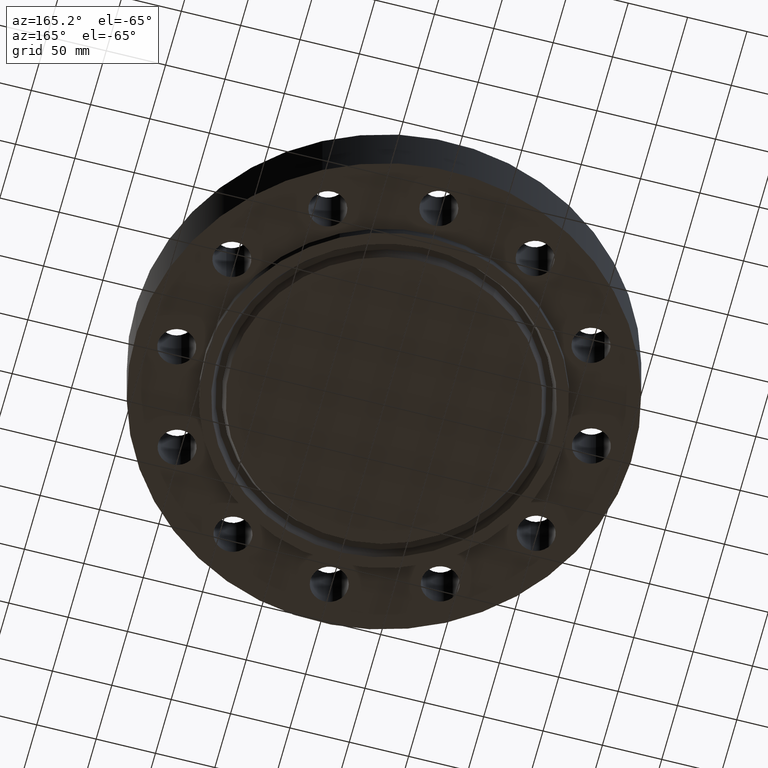
[diagram: clean part render]
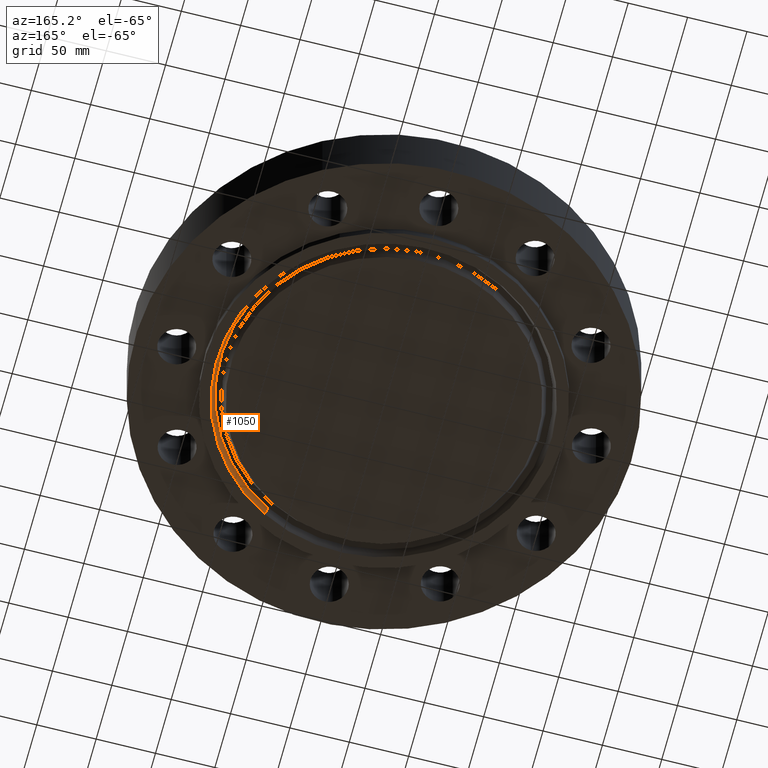
[diagram: same view with one face highlighted and labeled with its STEP entity id]
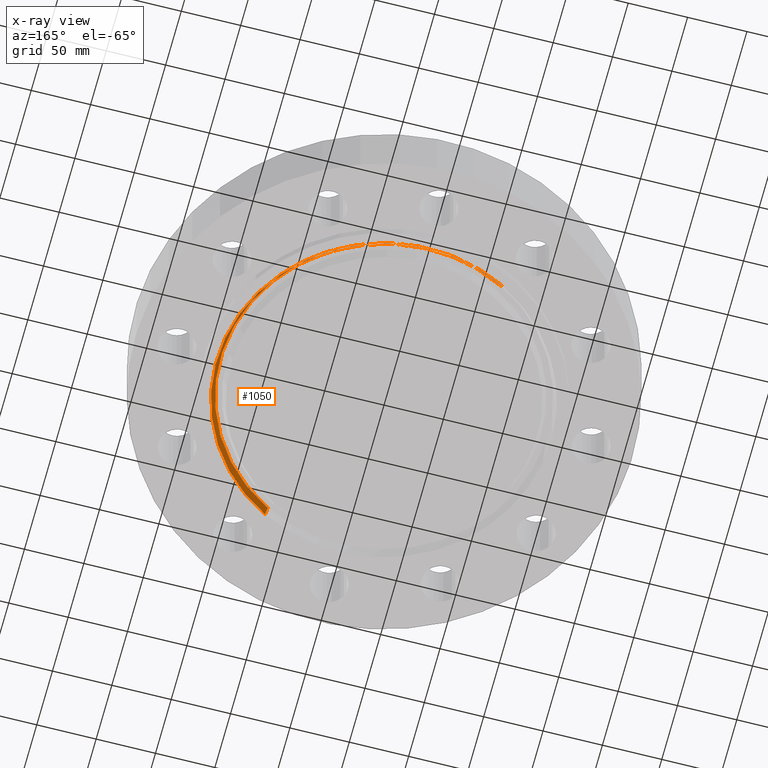
[diagram: x-ray of the same camera — body ghosted, the highlighted face saturated]
A machine part, auxiliary view. The second image highlights one B-rep face of the part: STEP entity #1050.
The next image is the same camera in x-ray: the body ghosted, the highlighted face saturated — about 0% of this face is hidden behind the body in this view.
In plain terms, the highlighted conical surface has half-angle 23 deg.
Its self-contained STEP definition (entity closure, byte-faithful):
#88=AXIS2_PLACEMENT_3D('Circle Axis2P3D',#86,#87,$) ;
#985=AXIS2_PLACEMENT_3D('Cone Axis2P3D',#982,#983,#984) ;
#1006=AXIS2_PLACEMENT_3D('Circle Axis2P3D',#1004,#1005,$) ;
#81=CARTESIAN_POINT('Vertex',(2.65931353446,-4.86784077301,-0.312500000001)) ;
#83=CARTESIAN_POINT('Vertex',(-2.65931353446,4.86784077301,-0.312500000001)) ;
#86=CARTESIAN_POINT('Axis2P3D Location',(1.39870617276E-016,5.59482469102E-016,-0.312500000001)) ;
#951=CARTESIAN_POINT('Vertex',(-2.59959316007,4.75852336095,-0.0190396522348)) ;
#953=CARTESIAN_POINT('Vertex',(2.59959316007,-4.75852336095,-0.0190396522348)) ;
#982=CARTESIAN_POINT('Axis2P3D Location',(0.,0.,-0.0190396522348)) ;
#987=CARTESIAN_POINT('Line Origine',(-2.62945334726,4.81318206698,-0.165769826118)) ;
#992=CARTESIAN_POINT('Line Origine',(2.62945334726,-4.81318206698,-0.165769826118)) ;
#1004=CARTESIAN_POINT('Axis2P3D Location',(0.,0.,-0.0190396522348)) ;
#87=DIRECTION('Axis2P3D Direction',(0.,0.,-0.0393700787402)) ;
#983=DIRECTION('Axis2P3D Direction',(-0.,-0.,-0.0393700787402)) ;
#984=DIRECTION('Axis2P3D XDirection',(-0.0188750212049,0.0345504945626,0.)) ;
#988=DIRECTION('Vector Direction',(-0.00737505833565,0.0134999537303,-0.0362403485611)) ;
#993=DIRECTION('Vector Direction',(0.00737505833565,-0.0134999537303,-0.0362403485611)) ;
#1005=DIRECTION('Axis2P3D Direction',(0.,0.,0.0393700787402)) ;
#989=VECTOR('Line Direction',#988,0.0393700787402) ;
#994=VECTOR('Line Direction',#993,0.0393700787402) ;
#1045=ORIENTED_EDGE('',*,*,#90,.T.) ;
#1046=ORIENTED_EDGE('',*,*,#996,.T.) ;
#1047=ORIENTED_EDGE('',*,*,#1008,.T.) ;
#1048=ORIENTED_EDGE('',*,*,#991,.F.) ;
#1050=ADVANCED_FACE('PartBody',(#1049),#986,.F.) ;
#89=CIRCLE('generated circle',#88,5.54687500002) ;
#1007=CIRCLE('generated circle',#1006,5.42230847284) ;
#986=CONICAL_SURFACE('Cone',#985,5.42230847284,0.401425727959) ;
#90=EDGE_CURVE('',#84,#82,#89,.T.) ;
#991=EDGE_CURVE('',#84,#952,#990,.F.) ;
#996=EDGE_CURVE('',#82,#954,#995,.F.) ;
#1008=EDGE_CURVE('',#954,#952,#1007,.T.) ;
#1044=EDGE_LOOP('',(#1045,#1046,#1047,#1048)) ;
#1049=FACE_OUTER_BOUND('',#1044,.T.) ;
#990=LINE('Line',#987,#989) ;
#995=LINE('Line',#992,#994) ;
#82=VERTEX_POINT('',#81) ;
#84=VERTEX_POINT('',#83) ;
#952=VERTEX_POINT('',#951) ;
#954=VERTEX_POINT('',#953) ;